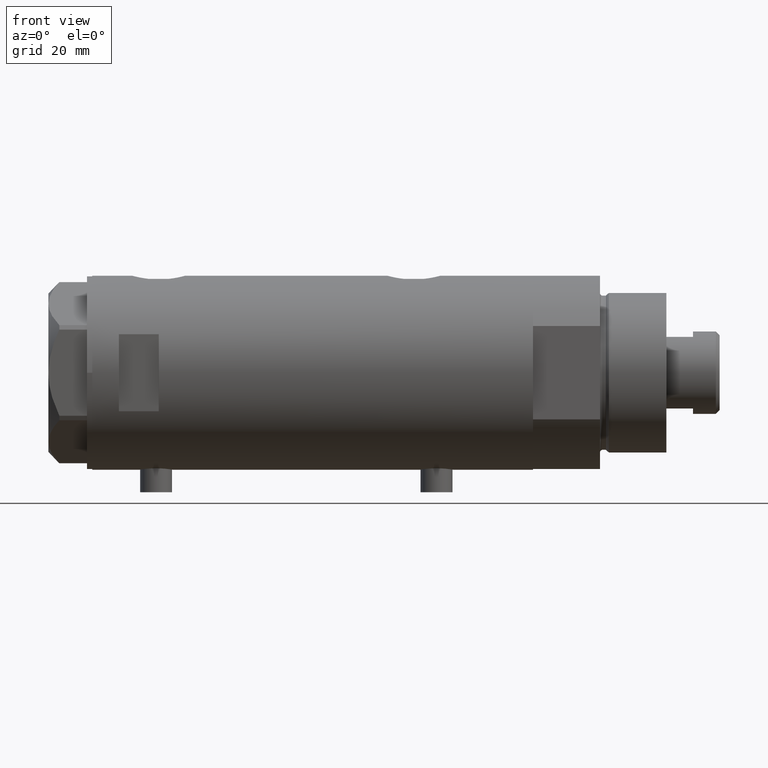
[diagram: clean part render]
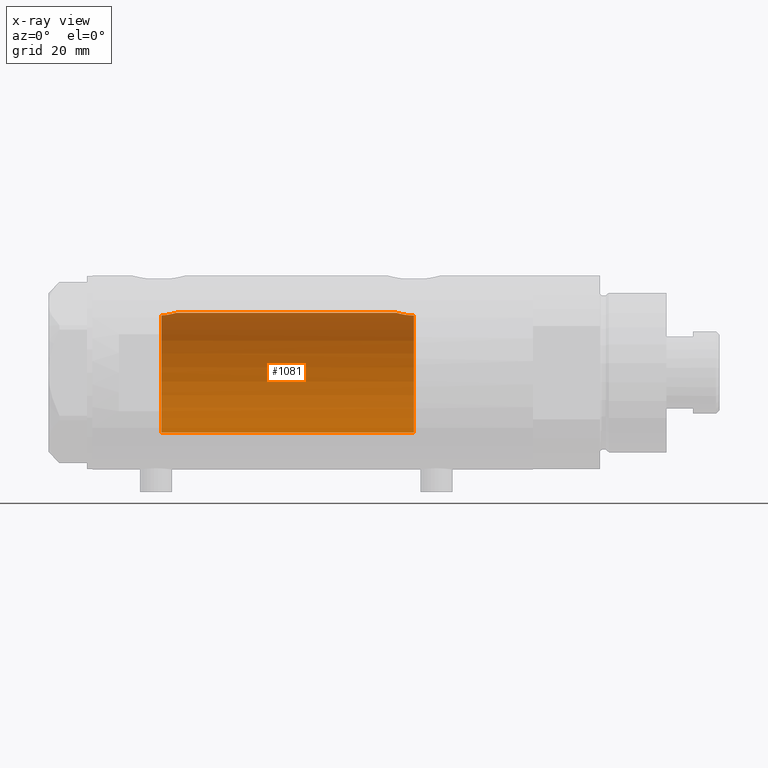
[diagram: x-ray — body ghosted, one internal face saturated and labeled with its STEP entity id]
A machine part, front view, then the same camera in x-ray: the body is ghosted and one INTERNAL B-rep face — a face not visible from any outside direction — is saturated and labeled: STEP entity #1081.
In plain terms, the highlighted cylindrical surface (partial cylindrical patch) has radius 22.5 mm, axis along (1, 0, -0).
Its self-contained STEP definition (entity closure, byte-faithful):
#121 = CARTESIAN_POINT ( 'NONE',  ( 21.85834467356397681, 5.340944334976049923, 54.03736885285049851 ) ) ;
#124 = CARTESIAN_POINT ( 'NONE',  ( 22.25860915731085754, 3.306748059303223464, -32.39512753277105617 ) ) ;
#170 = CARTESIAN_POINT ( 'NONE',  ( 22.44738562510071489, 1.549445000368393277, 51.50203276325539292 ) ) ;
#185 = ORIENTED_EDGE ( 'NONE', *, *, #2178, .T. ) ;
#226 = CARTESIAN_POINT ( 'NONE',  ( 21.51969523957628283, 6.569111213712935715, -37.66380209493692632 ) ) ;
#310 = CARTESIAN_POINT ( 'NONE',  ( 21.54248662244912893, 6.494090541481658541, -37.01861175082140676 ) ) ;
#404 = AXIS2_PLACEMENT_3D ( 'NONE', #1826, #2463, #1779 ) ;
#441 = CARTESIAN_POINT ( 'NONE',  ( 22.30007684883240060, 3.011608117356138425, 52.03690468166832517 ) ) ;
#476 = DIRECTION ( 'NONE',  ( -0.000000000000000000, -0.000000000000000000, -1.000000000000000000 ) ) ;
#489 = CARTESIAN_POINT ( 'NONE',  ( 21.55996057785741726, 6.435875139617805551, 56.51641692772588499 ) ) ;
#850 = VERTEX_POINT ( 'NONE', #1859 ) ;
#853 = CARTESIAN_POINT ( 'NONE',  ( 21.97198143592078878, 4.852313884858198811, 53.43898489903312310 ) ) ;
#865 = LINE ( 'NONE', #1964, #3570 ) ;
#965 = CARTESIAN_POINT ( 'NONE',  ( 21.58039466125149630, 6.367443256290042264, -36.38625661091905528 ) ) ;
#1011 = CARTESIAN_POINT ( 'NONE',  ( 22.07793805162484446, 4.348669293362732446, -33.14321183416397076 ) ) ;
#1061 = CARTESIAN_POINT ( 'NONE',  ( 22.50000000000000355, 0.000000000000000000, 51.32000000000000028 ) ) ;
#1081 = ADVANCED_FACE ( 'NONE', ( #4255 ), #2810, .F. ) ;
#1083 = DIRECTION ( 'NONE',  ( 0.000000000000000000, 0.000000000000000000, 1.000000000000000000 ) ) ;
#1112 = LINE ( 'NONE', #4263, #2500 ) ;
#1119 = CARTESIAN_POINT ( 'NONE',  ( 21.70300828301578733, 5.938634204148080187, 55.04008341356918521 ) ) ;
#1280 = CARTESIAN_POINT ( 'NONE',  ( 22.50000000000000355, 0.000000000000000000, 51.32000000000000028 ) ) ;
#1300 = EDGE_CURVE ( 'NONE', #3931, #850, #865, .T. ) ;
#1304 = CARTESIAN_POINT ( 'NONE',  ( 21.53277870401796434, 6.526097350343573744, -37.23193080670432664 ) ) ;
#1308 = DIRECTION ( 'NONE',  ( 0.000000000000000000, 0.000000000000000000, -1.000000000000000000 ) ) ;
#1321 = CARTESIAN_POINT ( 'NONE',  ( 21.88602906110443058, 5.222191658358659616, -34.09110908501991588 ) ) ;
#1478 = B_SPLINE_CURVE_WITH_KNOTS ( 'NONE', 3,
 ( #2575, #2892, #489, #1864, #4289, #2549, #1119, #3946, #121, #853, #1507, #2214, #3282, #441, #3601, #3263, #1550, #170, #1818, #3192, #2748, #1280 ),
 .UNSPECIFIED., .F., .F.,
 ( 4, 2, 2, 2, 2, 2, 2, 2, 2, 2, 4 ),
 ( 0.03202894702871426219, 0.03261250414633486139, 0.03319606126395546059, 0.03436317549919667980, 0.03553028973443790595, 0.03669740396967912516, 0.03786451820492034437, 0.03903163244016157052, 0.03961518955778217665, 0.04019874667540278973, 0.04136586091064400894 ),
 .UNSPECIFIED. ) ;
#1499 = CIRCLE ( 'NONE', #3002, 22.50000000000000355 ) ;
#1507 = CARTESIAN_POINT ( 'NONE',  ( 22.03020271031499888, 4.583618747547679284, 53.16326305060303525 ) ) ;
#1508 = CARTESIAN_POINT ( 'NONE',  ( 22.14109776314135658, 4.018961829707383693, -32.87237162697964266 ) ) ;
#1538 = CARTESIAN_POINT ( 'NONE',  ( 21.51635656889892800, 6.580000000000002736, -38.10000000000000142 ) ) ;
#1550 = CARTESIAN_POINT ( 'NONE',  ( 22.41810768969941847, 1.927264596308556399, 51.60552498238021002 ) ) ;
#1618 = CARTESIAN_POINT ( 'NONE',  ( 21.98170506496023435, 4.804030677015544981, -33.59847163284562299 ) ) ;
#1639 = CARTESIAN_POINT ( 'NONE',  ( 21.61738790272778843, 6.242481197317898634, -35.97475324290417831 ) ) ;
#1665 = CARTESIAN_POINT ( 'NONE',  ( 21.71097692913352617, 5.908765693315405798, -35.17224774632267525 ) ) ;
#1668 = CARTESIAN_POINT ( 'NONE',  ( -22.50000000000000355, 0.000000000000000000, -38.09999999999999432 ) ) ;
#1717 = ORIENTED_EDGE ( 'NONE', *, *, #2345, .T. ) ;
#1779 = DIRECTION ( 'NONE',  ( -1.000000000000000000, 0.000000000000000000, 0.000000000000000000 ) ) ;
#1818 = CARTESIAN_POINT ( 'NONE',  ( 22.45973433770731020, 1.359115216171840279, 51.45894713662338660 ) ) ;
#1819 = CARTESIAN_POINT ( 'NONE',  ( 22.50000000000000711, 0.4308769323960432440, -31.52000000000001378 ) ) ;
#1826 = CARTESIAN_POINT ( 'NONE',  ( 0.000000000000000000, 0.000000000000000000, 82.90000000000000568 ) ) ;
#1837 = CARTESIAN_POINT ( 'NONE',  ( 22.31307373663816662, 2.921646833104065255, -32.18858613169776817 ) ) ;
#1859 = CARTESIAN_POINT ( 'NONE',  ( 22.50000000000000355, 8.058593785575293352E-16, -31.51999999999999957 ) ) ;
#1864 = CARTESIAN_POINT ( 'NONE',  ( 21.58771824211648038, 6.342145538420561834, 56.13591924784430631 ) ) ;
#1964 = CARTESIAN_POINT ( 'NONE',  ( 22.50000000000000355, 2.755455298081545172E-15, 82.90000000000000568 ) ) ;
#1973 = CARTESIAN_POINT ( 'NONE',  ( 21.94924653817634663, 4.949760619110008975, -33.75922104935666113 ) ) ;
#1989 = CARTESIAN_POINT ( 'NONE',  ( 21.51635656889893156, 6.580000000000002736, -37.88312317022887754 ) ) ;
#2178 = EDGE_CURVE ( 'NONE', #3989, #3698, #2341, .T. ) ;
#2214 = CARTESIAN_POINT ( 'NONE',  ( 22.14421896774458887, 3.996618394220599946, 52.65850411031065192 ) ) ;
#2316 = ORIENTED_EDGE ( 'NONE', *, *, #2584, .F. ) ;
#2324 = CARTESIAN_POINT ( 'NONE',  ( 0.000000000000000000, 0.000000000000000000, -38.09999999999999432 ) ) ;
#2341 = CIRCLE ( 'NONE', #3503, 22.50000000000000355 ) ;
#2343 = VERTEX_POINT ( 'NONE', #4177 ) ;
#2345 = EDGE_CURVE ( 'NONE', #2343, #2841, #1499, .T. ) ;
#2409 = CARTESIAN_POINT ( 'NONE',  ( 0.000000000000000000, 0.000000000000000000, 56.90000000000000568 ) ) ;
#2432 = B_SPLINE_CURVE_WITH_KNOTS ( 'NONE', 3,
 ( #3647, #1819, #3193, #3550, #2844, #1837, #124, #1508, #1011, #1618, #1973, #1321, #3349, #4403, #1665, #1639, #965, #310, #1304, #226, #1989, #2688 ),
 .UNSPECIFIED., .F., .F.,
 ( 4, 2, 2, 2, 2, 2, 2, 2, 2, 2, 4 ),
 ( 0.02068572879290663316, 0.02197833177876012262, 0.02327093476461361554, 0.02456353775046710500, 0.02585614073632059445, 0.02650244222924734785, 0.02714874372217410126, 0.02844134670802762888, 0.02973394969388114956, 0.03038025118680791337, 0.03102655267973467718 ),
 .UNSPECIFIED. ) ;
#2463 = DIRECTION ( 'NONE',  ( -0.000000000000000000, -0.000000000000000000, -1.000000000000000000 ) ) ;
#2500 = VECTOR ( 'NONE', #476, 1000.000000000000000 ) ;
#2549 = CARTESIAN_POINT ( 'NONE',  ( 21.65875036540690601, 6.096384986856001831, 55.39350157007414310 ) ) ;
#2575 = CARTESIAN_POINT ( 'NONE',  ( 21.53958216864942088, 6.503568251352486840, 56.90000000000000568 ) ) ;
#2584 = EDGE_CURVE ( 'NONE', #850, #3698, #2432, .T. ) ;
#2688 = CARTESIAN_POINT ( 'NONE',  ( 21.51635656889892800, 6.580000000000002736, -38.10000000000000142 ) ) ;
#2748 = CARTESIAN_POINT ( 'NONE',  ( 22.50000000000000355, 0.3947970979781463829, 51.31999999999999318 ) ) ;
#2810 = CYLINDRICAL_SURFACE ( 'NONE', #404, 22.50000000000000355 ) ;
#2841 = VERTEX_POINT ( 'NONE', #3937 ) ;
#2844 = CARTESIAN_POINT ( 'NONE',  ( 22.40265168709897736, 2.128491761919761416, -31.85897789146818582 ) ) ;
#2892 = CARTESIAN_POINT ( 'NONE',  ( 21.54850992350584349, 6.473999851071386757, 56.70769989068857342 ) ) ;
#3002 = AXIS2_PLACEMENT_3D ( 'NONE', #2409, #1083, #3816 ) ;
#3048 = ORIENTED_EDGE ( 'NONE', *, *, #4193, .F. ) ;
#3192 = CARTESIAN_POINT ( 'NONE',  ( 22.48961798642638499, 0.7839168256130851775, 51.35525408827136573 ) ) ;
#3193 = CARTESIAN_POINT ( 'NONE',  ( 22.48752745446833501, 0.8626660575027224054, -31.56226479722901956 ) ) ;
#3263 = CARTESIAN_POINT ( 'NONE',  ( 22.40112435233285026, 2.115025885874699973, 51.66613662186026090 ) ) ;
#3282 = CARTESIAN_POINT ( 'NONE',  ( 22.20005338163447206, 3.677069589895788582, 52.42964083487822791 ) ) ;
#3329 = EDGE_CURVE ( 'NONE', #2841, #3989, #1112, .T. ) ;
#3349 = CARTESIAN_POINT ( 'NONE',  ( 21.85514244747245272, 5.349553529053609147, -34.26278474480277225 ) ) ;
#3503 = AXIS2_PLACEMENT_3D ( 'NONE', #2324, #1308, #4113 ) ;
#3550 = CARTESIAN_POINT ( 'NONE',  ( 22.43846943857365872, 1.717024460055897039, -31.73305400432138867 ) ) ;
#3570 = VECTOR ( 'NONE', #4385, 1000.000000000000000 ) ;
#3601 = CARTESIAN_POINT ( 'NONE',  ( 22.34487948028763071, 2.662928462767973237, 51.87031008565885060 ) ) ;
#3647 = CARTESIAN_POINT ( 'NONE',  ( 22.50000000000000355, 8.058593785575293352E-16, -31.51999999999999957 ) ) ;
#3662 = ORIENTED_EDGE ( 'NONE', *, *, #3329, .T. ) ;
#3698 = VERTEX_POINT ( 'NONE', #1538 ) ;
#3766 = EDGE_LOOP ( 'NONE', ( #4210, #3048, #1717, #3662, #185, #2316 ) ) ;
#3816 = DIRECTION ( 'NONE',  ( 1.000000000000000000, 0.000000000000000000, 0.000000000000000000 ) ) ;
#3931 = VERTEX_POINT ( 'NONE', #1061 ) ;
#3937 = CARTESIAN_POINT ( 'NONE',  ( -22.50000000000000355, 0.000000000000000000, 56.90000000000000568 ) ) ;
#3946 = CARTESIAN_POINT ( 'NONE',  ( 21.80257506594836059, 5.561983929949493088, 54.36293428743496747 ) ) ;
#3989 = VERTEX_POINT ( 'NONE', #1668 ) ;
#4113 = DIRECTION ( 'NONE',  ( -1.000000000000000000, 0.000000000000000000, 0.000000000000000000 ) ) ;
#4177 = CARTESIAN_POINT ( 'NONE',  ( 21.53958216864942088, 6.503568251352486840, 56.90000000000000568 ) ) ;
#4193 = EDGE_CURVE ( 'NONE', #2343, #3931, #1478, .T. ) ;
#4210 = ORIENTED_EDGE ( 'NONE', *, *, #1300, .F. ) ;
#4255 = FACE_OUTER_BOUND ( 'NONE', #3766, .T. ) ;
#4263 = CARTESIAN_POINT ( 'NONE',  ( -22.50000000000000355, 0.000000000000000000, 82.90000000000000568 ) ) ;
#4289 = CARTESIAN_POINT ( 'NONE',  ( 21.60406082673097927, 6.286405977953741342, 55.94666670735803393 ) ) ;
#4385 = DIRECTION ( 'NONE',  ( -0.000000000000000000, -0.000000000000000000, -1.000000000000000000 ) ) ;
#4403 = CARTESIAN_POINT ( 'NONE',  ( 21.76592257976932032, 5.705656113855375189, -34.79484284637812408 ) ) ;